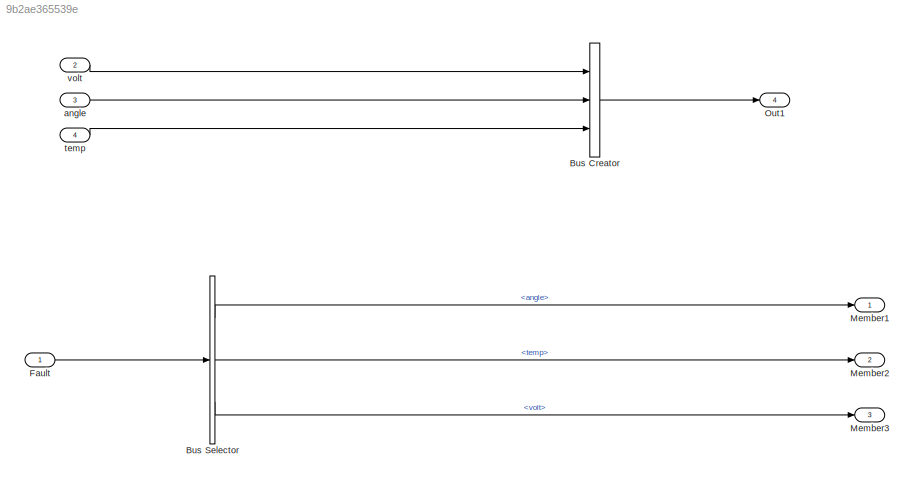
MODEL slx_9b2ae365539e
KIND model
CONFIG AbsTol = auto
CONFIG FixedStep = auto
CONFIG MaxStep = auto
CONFIG MinStep = auto
CONFIG RelTol = 1e-3
CONFIG SampleTimeConstraint = Unconstrained
CONFIG Solver = FixedStepDiscrete
CONFIG SolverMode = Auto
CONFIG SolverName = FixedStepDiscrete
CONFIG StartTime = 0.0
CONFIG StopTime = 10.0
WORKSPACE source: MAT-file member
WORKSPACE Var = 0
BLOCK [BusCreator] Bus Creator
  DisplayOption = bar
  InheritFromInputs = on
  Inputs = 3
  OutDataTypeStr = Bus: fault_t
  Ports = [3, 1]
BLOCK [BusSelector] Bus Selector
  OutputSignals = angle,temp,volt
  Ports = [1, 3]
BLOCK [Inport] Fault
  IconDisplay = Port number
  OutDataTypeStr = Bus: fault_t
BLOCK [Outport] Member1 
  IconDisplay = Port number
BLOCK [Outport] Member2 
  IconDisplay = Port number
  Port = 2
BLOCK [Outport] Member3 
  IconDisplay = Port number
  Port = 3
BLOCK [Outport] Out1
  IconDisplay = Port number
  OutDataTypeStr = Bus: fault_t
  Port = 4
BLOCK [Inport] angle 
  IconDisplay = Port number
  Port = 3
BLOCK [Inport] temp 
  IconDisplay = Port number
  Port = 4
BLOCK [Inport] volt 
  IconDisplay = Port number
  Port = 2
LINE Bus Creator:1 -> Out1:1
LINE Bus Selector:1 -> Member1 :1
LINE Bus Selector:2 -> Member2 :1
LINE Bus Selector:3 -> Member3 :1
LINE Fault:1 -> Bus Selector:1
LINE angle :1 -> Bus Creator:2
LINE temp :1 -> Bus Creator:3
LINE volt :1 -> Bus Creator:1
